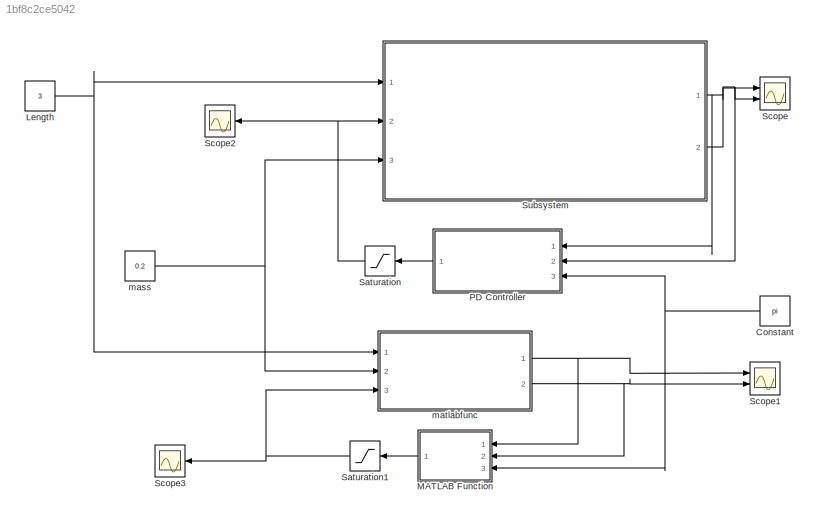
MODEL slx_1bf8c2ce5042
KIND model
CONFIG AbsTol = auto
CONFIG EnableMultiTasking = off
CONFIG FixedStep = auto
CONFIG MaxStep = auto
CONFIG MinStep = auto
CONFIG RelTol = 1e-3
CONFIG SampleTimeConstraint = Unconstrained
CONFIG SolverName = VariableStepAuto
CONFIG StartTime = 0.0
CONFIG StopTime = 10.0
BLOCK [Constant] Constant
  Value = pi
BLOCK [Constant] Length
  Value = 3
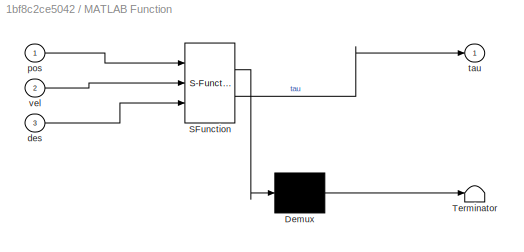
BLOCK [SubSystem] MATLAB Function
  ErrorFcn = Stateflow.Translate.translate
  PermitHierarchicalResolution = ExplicitOnly
  Ports = [3, 1]
  RequestExecContextInheritance = off
  SFBlockType = MATLAB Function
  TreatAsAtomicUnit = on
BLOCK [Demux] MATLAB Function/ Demux 
  Outputs = 1
  Ports = [1, 1]
BLOCK [S-Function] MATLAB Function/ SFunction 
  EnableBusSupport = on
  FunctionName = sf_sfun
  PortCounts = [3 2]
  Ports = [3, 2]
  SFcnIsStateOwnerBlock = off
  SFunctionDeploymentMode = off
  Tag = Stateflow S-Function 1
BLOCK [Terminator] MATLAB Function/ Terminator 
BLOCK [Inport] MATLAB Function/des
  Port = 3
BLOCK [Inport] MATLAB Function/pos
BLOCK [Outport] MATLAB Function/tau
BLOCK [Inport] MATLAB Function/vel
  Port = 2
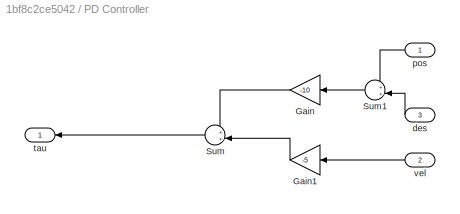
BLOCK [SubSystem] PD Controller
  Ports = [3, 1]
  RequestExecContextInheritance = off
BLOCK [Gain] PD Controller/Gain
  Gain = -10
BLOCK [Gain] PD Controller/Gain1
  Gain = -5
BLOCK [Sum] PD Controller/Sum
  Ports = [2, 1]
BLOCK [Sum] PD Controller/Sum1
  Ports = [2, 1]
BLOCK [Inport] PD Controller/des
  Port = 3
BLOCK [Inport] PD Controller/pos
BLOCK [Outport] PD Controller/tau
BLOCK [Inport] PD Controller/vel
  Port = 2
BLOCK [Saturate] Saturation
  LowerLimit = -8
  UpperLimit = 8
BLOCK [Saturate] Saturation1
  LowerLimit = -8
  UpperLimit = 8
BLOCK [Scope] Scope
  Floating = off
  NumInputPorts = 2
  Ports = [2]
  ScopeSpecificationString = Simulink.scopes.TimeScopeBlockCfg('CurrentConfiguration', extmgr.ConfigurationSet(extmgr.Configuration('Core','General UI',true),extmgr.Configuration('Core','Source UI',true),extmgr.Configuration('Sources','WiredSimulink',true),extmgr.Configuration('Visuals','Time Domain',true,'SerializedDisplays',{struct('MinYLimReal','-4.98491','MaxYLimReal','2.28026','YLabelReal','','MinYLimMag','0.00000','MaxY...<+1378ch>
BLOCK [Scope] Scope1
  Floating = off
  NumInputPorts = 2
  Ports = [2]
  ScopeSpecificationString = Simulink.scopes.TimeScopeBlockCfg('CurrentConfiguration', extmgr.ConfigurationSet(extmgr.Configuration('Core','General UI',true),extmgr.Configuration('Core','Source UI',true),extmgr.Configuration('Sources','WiredSimulink',true,'DataLoggingVariableName','ScopeData1'),extmgr.Configuration('Visuals','Time Domain',true,'SerializedDisplays',{struct('MinYLimReal','-2.11966','MaxYLimReal','6.94485','YLab...<+1419ch>
BLOCK [Scope] Scope2
  Floating = off
  NumInputPorts = 1
  Ports = [1]
  ScopeSpecificationString = Simulink.scopes.TimeScopeBlockCfg('CurrentConfiguration', extmgr.ConfigurationSet(extmgr.Configuration('Core','General UI',true),extmgr.Configuration('Core','Source UI',true),extmgr.Configuration('Sources','WiredSimulink',true,'DataLoggingVariableName','ScopeData2'),extmgr.Configuration('Visuals','Time Domain',true,'SerializedDisplays',{struct('MinYLimReal','-10.00000','MaxYLimReal','10.00000','YL...<+1406ch>
BLOCK [Scope] Scope3
  Floating = off
  NumInputPorts = 1
  Ports = [1]
  ScopeSpecificationString = Simulink.scopes.TimeScopeBlockCfg('CurrentConfiguration', extmgr.ConfigurationSet(extmgr.Configuration('Core','General UI',true),extmgr.Configuration('Core','Source UI',true),extmgr.Configuration('Sources','WiredSimulink',true,'DataLoggingVariableName','ScopeData3'),extmgr.Configuration('Visuals','Time Domain',true,'SerializedDisplays',{struct('MinYLimReal','-10.00000','MaxYLimReal','10.00000','YL...<+1376ch>
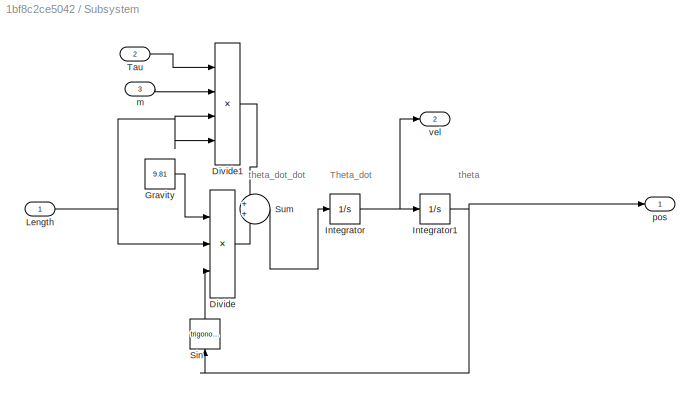
BLOCK [SubSystem] Subsystem
  Ports = [3, 2]
  RequestExecContextInheritance = off
BLOCK [Product] Subsystem/Divide
  Inputs = */*
  Ports = [3, 1]
BLOCK [Product] Subsystem/Divide1
  Inputs = *///
  Ports = [4, 1]
BLOCK [Constant] Subsystem/Gravity
  Value = 9.81
BLOCK [Integrator] Subsystem/Integrator
  Ports = [1, 1]
BLOCK [Integrator] Subsystem/Integrator1
  InitialCondition = pi/3
  Ports = [1, 1]
BLOCK [Inport] Subsystem/Length
BLOCK [Trigonometry] Subsystem/Sin
  NameLocation = left
  Ports = [1, 1]
BLOCK [Sum] Subsystem/Sum
  Ports = [2, 1]
BLOCK [Inport] Subsystem/Tau
  Port = 2
BLOCK [Inport] Subsystem/m
  Port = 3
BLOCK [Outport] Subsystem/pos
BLOCK [Outport] Subsystem/vel
  Port = 2
BLOCK [Constant] mass
  Value = 0.2
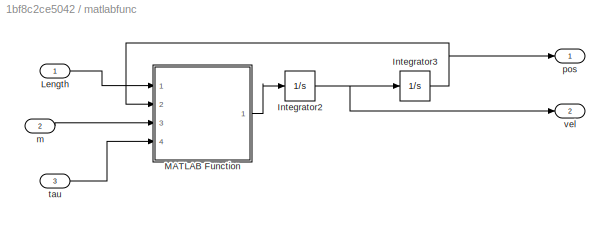
BLOCK [SubSystem] matlabfunc
  Ports = [3, 2]
  RequestExecContextInheritance = off
BLOCK [Integrator] matlabfunc/Integrator2
  Ports = [1, 1]
BLOCK [Integrator] matlabfunc/Integrator3
  InitialCondition = pi/3
  Ports = [1, 1]
BLOCK [Inport] matlabfunc/Length
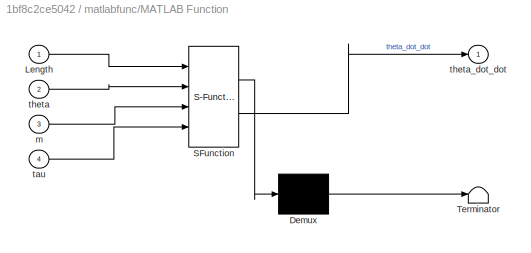
BLOCK [SubSystem] matlabfunc/MATLAB Function
  ErrorFcn = Stateflow.Translate.translate
  PermitHierarchicalResolution = ExplicitOnly
  Ports = [4, 1]
  RequestExecContextInheritance = off
  SFBlockType = MATLAB Function
  TreatAsAtomicUnit = on
BLOCK [Demux] matlabfunc/MATLAB Function/ Demux 
  Outputs = 1
  Ports = [1, 1]
BLOCK [S-Function] matlabfunc/MATLAB Function/ SFunction 
  EnableBusSupport = on
  FunctionName = sf_sfun
  PortCounts = [4 2]
  Ports = [4, 2]
  SFcnIsStateOwnerBlock = off
  SFunctionDeploymentMode = off
  Tag = Stateflow S-Function 2
BLOCK [Terminator] matlabfunc/MATLAB Function/ Terminator 
BLOCK [Inport] matlabfunc/MATLAB Function/Length
BLOCK [Inport] matlabfunc/MATLAB Function/m
  Port = 3
BLOCK [Inport] matlabfunc/MATLAB Function/tau
  Port = 4
BLOCK [Inport] matlabfunc/MATLAB Function/theta
  Port = 2
BLOCK [Outport] matlabfunc/MATLAB Function/theta_dot_dot
BLOCK [Inport] matlabfunc/m
  Port = 2
BLOCK [Outport] matlabfunc/pos
BLOCK [Inport] matlabfunc/tau
  Port = 3
BLOCK [Outport] matlabfunc/vel
  Port = 2
ANNOTATION Subsystem: Theta_dot
ANNOTATION Subsystem: theta
ANNOTATION Subsystem: theta_dot_dot
NET Constant:1 -> MATLAB Function:3, PD Controller:3
NET Length:1 -> Subsystem:1, matlabfunc:1
LINE MATLAB Function:1 -> Saturation1:1
LINE PD Controller/Gain1:1 -> PD Controller/Sum:2
LINE PD Controller/Gain:1 -> PD Controller/Sum:1
LINE PD Controller/Sum1:1 -> PD Controller/Gain:1
LINE PD Controller/Sum:1 -> PD Controller/tau:1
LINE PD Controller/des:1 -> PD Controller/Sum1:2
LINE PD Controller/pos:1 -> PD Controller/Sum1:1
LINE PD Controller/vel:1 -> PD Controller/Gain1:1
LINE PD Controller:1 -> Saturation:1
NET Saturation1:1 -> Scope3:1, matlabfunc:3
NET Saturation:1 -> Scope2:1, Subsystem:2
LINE Subsystem/Divide1:1 -> Subsystem/Sum:1
LINE Subsystem/Divide:1 -> Subsystem/Sum:2
LINE Subsystem/Gravity:1 -> Subsystem/Divide:1
NET Subsystem/Integrator1:1 -> Subsystem/Sin:1, Subsystem/pos:1
NET Subsystem/Integrator:1 -> Subsystem/Integrator1:1, Subsystem/vel:1
NET Subsystem/Length:1 -> Subsystem/Divide1:3, Subsystem/Divide1:4, Subsystem/Divide:2
LINE Subsystem/Sin:1 -> Subsystem/Divide:3
LINE Subsystem/Sum:1 -> Subsystem/Integrator:1
LINE Subsystem/Tau:1 -> Subsystem/Divide1:1
LINE Subsystem/m:1 -> Subsystem/Divide1:2
NET Subsystem:1 -> PD Controller:1, Scope:1
NET Subsystem:2 -> PD Controller:2, Scope:2
NET mass:1 -> Subsystem:3, matlabfunc:2
NET matlabfunc/Integrator2:1 -> matlabfunc/Integrator3:1, matlabfunc/vel:1
NET matlabfunc/Integrator3:1 -> matlabfunc/MATLAB Function:2, matlabfunc/pos:1
LINE matlabfunc/Length:1 -> matlabfunc/MATLAB Function:1
LINE matlabfunc/MATLAB Function:1 -> matlabfunc/Integrator2:1
LINE matlabfunc/m:1 -> matlabfunc/MATLAB Function:3
LINE matlabfunc/tau:1 -> matlabfunc/MATLAB Function:4
NET matlabfunc:1 -> MATLAB Function:1, Scope1:1
NET matlabfunc:2 -> MATLAB Function:2, Scope1:2
note: NET lines group one-source signal fan-out (src -> all destinations, sorted); 1:1 wires keep LINE
CHART MATLAB Function states=1 transitions=1
  STATE_LABEL 'eML_blk_kernel()'
  STATE_LABEL 'SCRIPT:\nfunction tau = fcn(pos,vel,des)\n\ntau = -10 * (pos - des) - 5 * (vel - des);\n'
CHART matlabfunc/MATLAB Function states=1 transitions=1
  STATE_LABEL 'eML_blk_kernel()'
  STATE_LABEL 'SCRIPT:\nfunction theta_dot_dot = dyn(Length, theta,m,tau)\ng = 9.81;\nlen  = Length;\n\ntheta_dot_dot = -(g/len) * sin(theta) + tau/m/len^2;\n'
CHART  states=0 transitions=0
CHART  states=0 transitions=0
